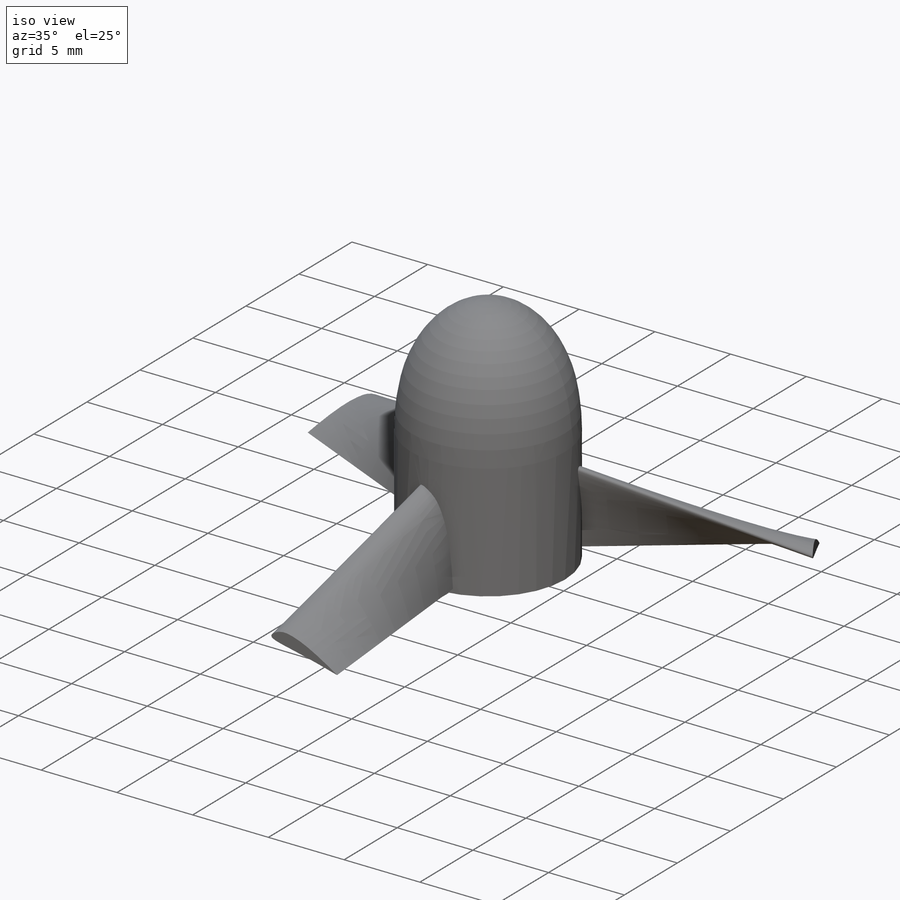
[diagram: iso view]
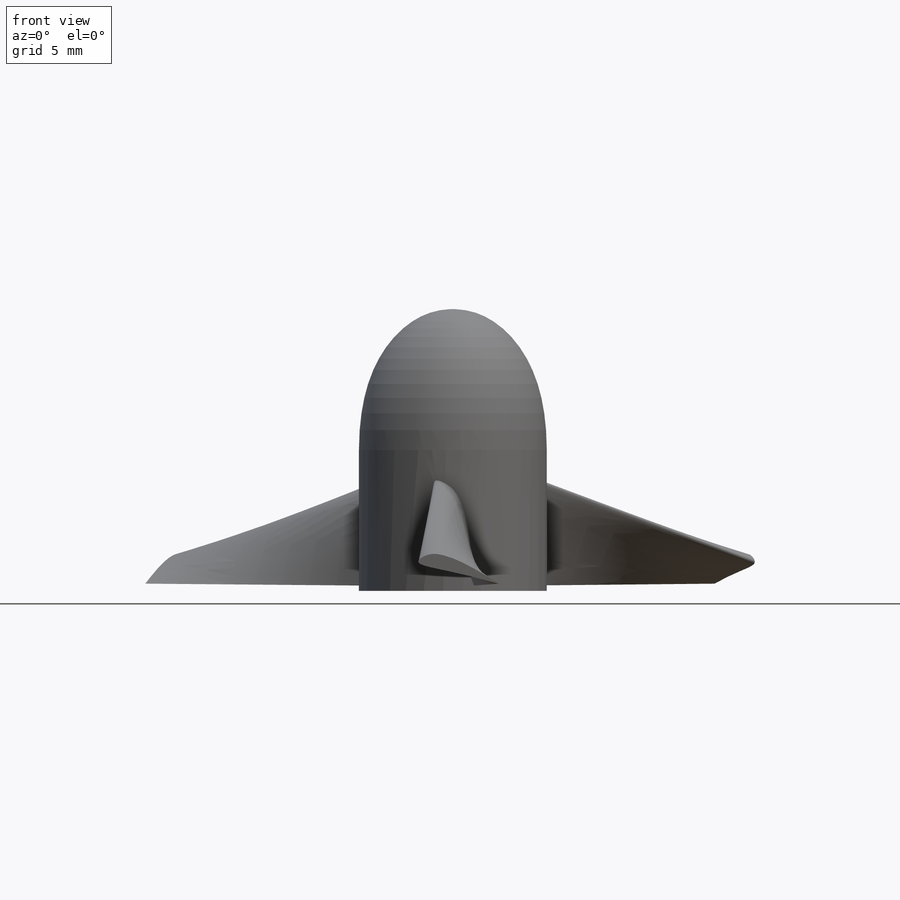
[diagram: front view]
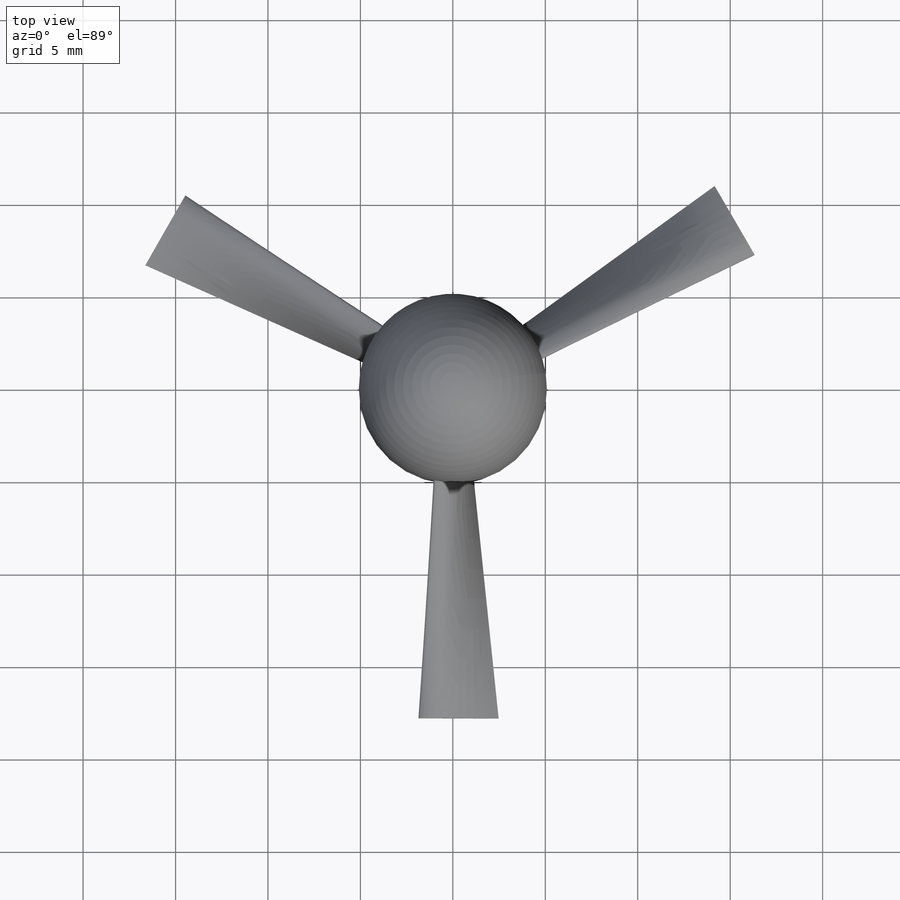
[diagram: top view]
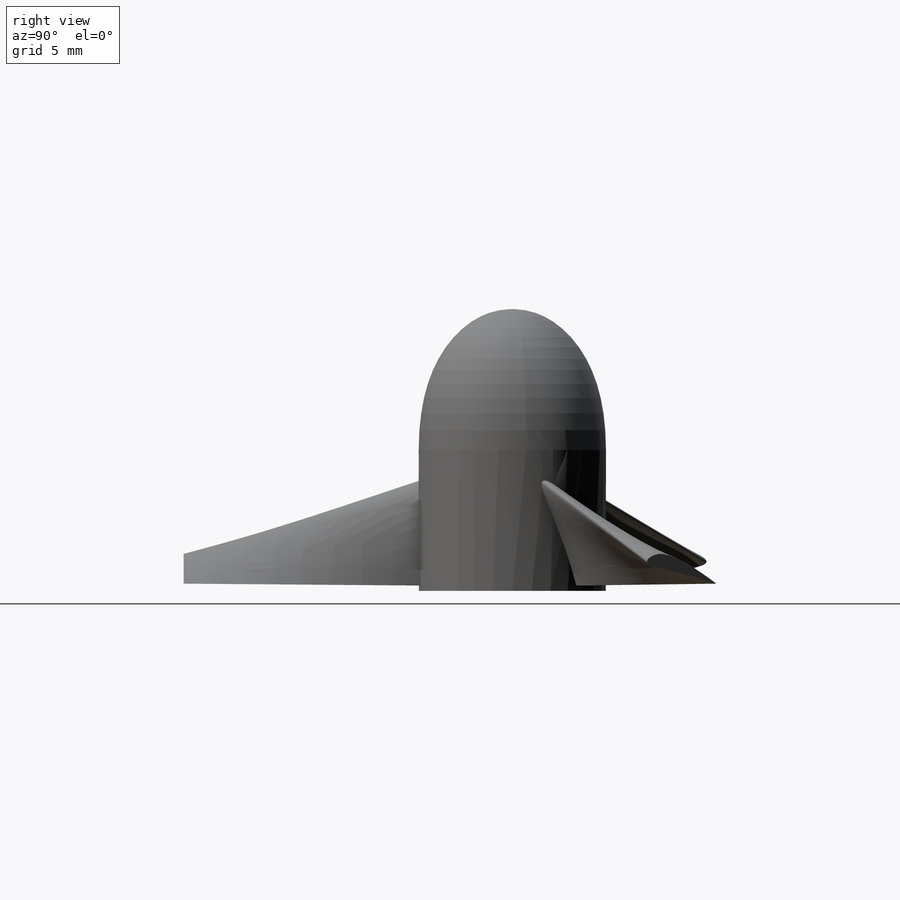
[diagram: right view]
SOLIDWORKS PART (.sldprt)
format: sldprt  version: not decoded by parser v0  size: 266,240 bytes
history: native  units: mm
features: sketch x5, material x1, revolve x1, extrude x1, plane x1, pattern_circular x1, cut_extrude x1 (+11 scaffold rows collapsed)
feature tree (22):
  scaffold x11  (default folders/planes/origin — collapsed)
  material  "Material <not specified>"
  sketch  "Sketch2"  dims[D1=5.08mm D2=7.62mm]
  revolve  "Revolve1"  Angle=360deg
  sketch  "Sketch3"
  extrude  "Boss-Extrude1"  Depth=7.62mm
  sketch  "Sketch4"
  plane  "Plane1"  Offset=17.78mm
  sketch  "Sketch5"
  pattern_circular  "CirPattern1"  Count=3 Angle=360deg
  sketch  "Sketch6"  dims[D1=~1.37164mm]
  cut_extrude  "Cut-Extrude1"  Depth=7.62mm
decode coverage: 6 of 9 modeling features carry decoded parameters
note: ~ marks probable driven/reference dimensions
note: suppression state not decoded; provenance and decode notes live in map.json
